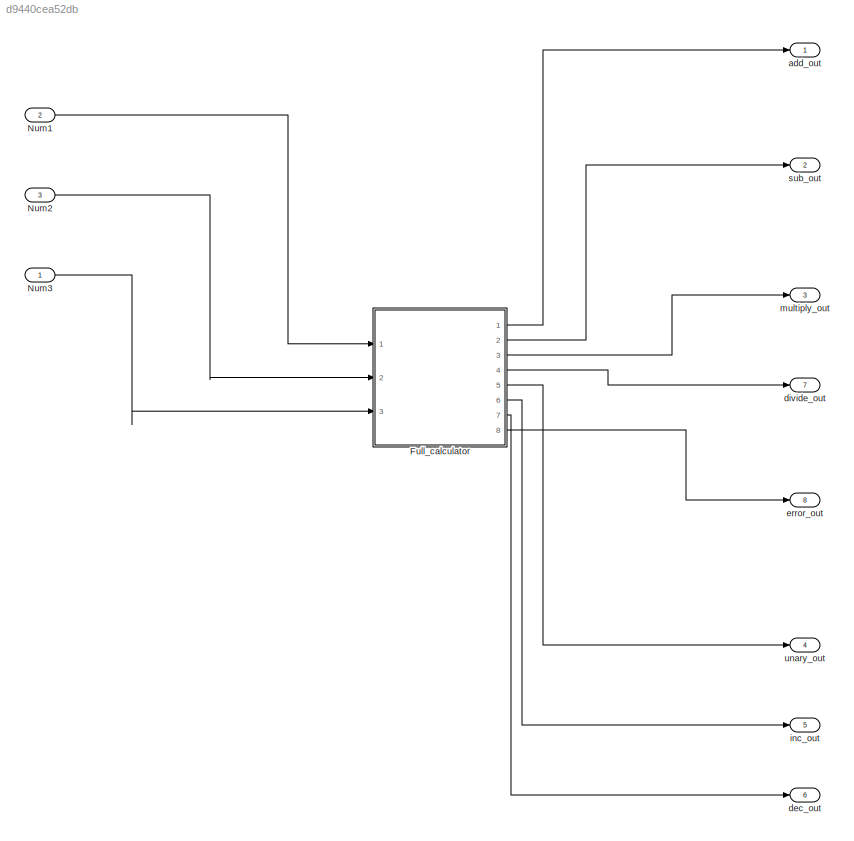
MODEL slx_d9440cea52db
KIND model
CONFIG AbsTol = auto
CONFIG EnableMultiTasking = off
CONFIG FixedStep = auto
CONFIG MaxStep = auto
CONFIG MinStep = auto
CONFIG RelTol = 1e-3
CONFIG SampleTimeConstraint = Unconstrained
CONFIG SolverName = VariableStepAuto
CONFIG StartTime = 0.0
CONFIG StopTime = 10.0
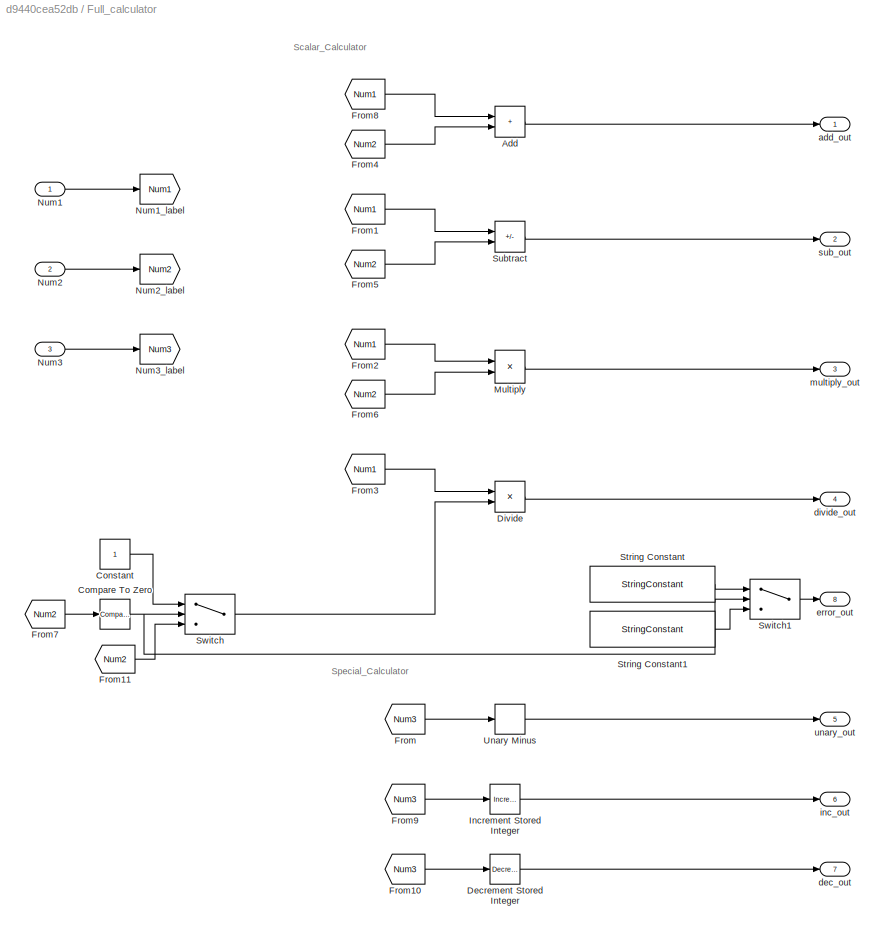
BLOCK [SubSystem] Full_calculator
  Ports = [3, 8]
  RequestExecContextInheritance = off
BLOCK [Sum] Full_calculator/Add
  IconShape = rectangular
  Ports = [2, 1]
BLOCK [Reference] Full_calculator/Compare To Zero  REF=simulink/Logic and Bit
Operations/Compare
To Zero
  Ports = [1, 1]
  SourceBlock = simulink/Logic and Bit\nOperations/Compare\nTo Zero
  SourceProductBaseCode = SL
  SourceType = Compare To Zero
BLOCK [Constant] Full_calculator/Constant
BLOCK [Reference] Full_calculator/Decrement Stored Integer  REF=simulink/Additional Math
& Discrete/Additional Math:
Increment - Decrement/Decrement
Stored Integer
  Ports = [1, 1]
  SourceBlock = simulink/Additional Math\n& Discrete/Additional Math:\nIncrement - Decrement/Decrement\nStored Integer
  SourceProductBaseCode = SL
  SourceType = Stored Integer Value Decrement
BLOCK [Product] Full_calculator/Divide
  Inputs = */
  Ports = [2, 1]
BLOCK [From] Full_calculator/From
  GotoTag = Num3
BLOCK [From] Full_calculator/From1
  GotoTag = Num1
BLOCK [From] Full_calculator/From10
  GotoTag = Num3
BLOCK [From] Full_calculator/From11
  GotoTag = Num2
BLOCK [From] Full_calculator/From2
  GotoTag = Num1
BLOCK [From] Full_calculator/From3
  GotoTag = Num1
BLOCK [From] Full_calculator/From4
  GotoTag = Num2
BLOCK [From] Full_calculator/From5
  GotoTag = Num2
BLOCK [From] Full_calculator/From6
  GotoTag = Num2
BLOCK [From] Full_calculator/From7
  GotoTag = Num2
BLOCK [From] Full_calculator/From8
  GotoTag = Num1
BLOCK [From] Full_calculator/From9
  GotoTag = Num3
BLOCK [Reference] Full_calculator/Increment Stored Integer  REF=simulink/Additional Math
& Discrete/Additional Math:
Increment - Decrement/Increment
Stored Integer
  Ports = [1, 1]
  SourceBlock = simulink/Additional Math\n& Discrete/Additional Math:\nIncrement - Decrement/Increment\nStored Integer
  SourceProductBaseCode = SL
  SourceType = Stored Integer Value Increment
BLOCK [Product] Full_calculator/Multiply
  Inputs = **
  Ports = [2, 1]
BLOCK [Inport] Full_calculator/Num1
BLOCK [Goto] Full_calculator/Num1_label
  GotoTag = Num1
BLOCK [Inport] Full_calculator/Num2
  Port = 2
BLOCK [Goto] Full_calculator/Num2_label
  GotoTag = Num2
BLOCK [Inport] Full_calculator/Num3
  Port = 3
BLOCK [Goto] Full_calculator/Num3_label
  GotoTag = Num3
BLOCK [StringConstant] Full_calculator/String Constant
  String = "Error_Division_By_Zero"
BLOCK [StringConstant] Full_calculator/String Constant1
  String = "No_Errors"
BLOCK [Sum] Full_calculator/Subtract
  IconShape = rectangular
  Inputs = +-
  Ports = [2, 1]
BLOCK [Switch] Full_calculator/Switch
  Criteria = u2 > Threshold
  InputSameDT = off
  SaturateOnIntegerOverflow = off
BLOCK [Switch] Full_calculator/Switch1
  Criteria = u2 > Threshold
  InputSameDT = off
  SaturateOnIntegerOverflow = off
BLOCK [UnaryMinus] Full_calculator/Unary Minus
BLOCK [Outport] Full_calculator/add_out
BLOCK [Outport] Full_calculator/dec_out
  Port = 7
BLOCK [Outport] Full_calculator/divide_out
  Port = 4
BLOCK [Outport] Full_calculator/error_out
  Port = 8
BLOCK [Outport] Full_calculator/inc_out
  Port = 6
BLOCK [Outport] Full_calculator/multiply_out
  Port = 3
BLOCK [Outport] Full_calculator/sub_out
  Port = 2
BLOCK [Outport] Full_calculator/unary_out
  Port = 5
BLOCK [Inport] Num1
  Port = 2
BLOCK [Inport] Num2
  Port = 3
BLOCK [Inport] Num3
BLOCK [Outport] add_out
BLOCK [Outport] dec_out
  Port = 6
BLOCK [Outport] divide_out
  Port = 7
BLOCK [Outport] error_out
  Port = 8
BLOCK [Outport] inc_out
  Port = 5
BLOCK [Outport] multiply_out
  Port = 3
BLOCK [Outport] sub_out
  Port = 2
BLOCK [Outport] unary_out
  Port = 4
ANNOTATION Full_calculator: Scalar_Calculator
ANNOTATION Full_calculator: Special_Calculator
LINE Full_calculator/Add:1 -> Full_calculator/add_out:1
NET Full_calculator/Compare To Zero:1 -> Full_calculator/Switch1:2, Full_calculator/Switch:2
LINE Full_calculator/Constant:1 -> Full_calculator/Switch:1
LINE Full_calculator/Decrement Stored Integer:1 -> Full_calculator/dec_out:1
LINE Full_calculator/Divide:1 -> Full_calculator/divide_out:1
LINE Full_calculator/From10:1 -> Full_calculator/Decrement Stored Integer:1
LINE Full_calculator/From11:1 -> Full_calculator/Switch:3
LINE Full_calculator/From1:1 -> Full_calculator/Subtract:1
LINE Full_calculator/From2:1 -> Full_calculator/Multiply:1
LINE Full_calculator/From3:1 -> Full_calculator/Divide:1
LINE Full_calculator/From4:1 -> Full_calculator/Add:2
LINE Full_calculator/From5:1 -> Full_calculator/Subtract:2
LINE Full_calculator/From6:1 -> Full_calculator/Multiply:2
LINE Full_calculator/From7:1 -> Full_calculator/Compare To Zero:1
LINE Full_calculator/From8:1 -> Full_calculator/Add:1
LINE Full_calculator/From9:1 -> Full_calculator/Increment Stored Integer:1
LINE Full_calculator/From:1 -> Full_calculator/Unary Minus:1
LINE Full_calculator/Increment Stored Integer:1 -> Full_calculator/inc_out:1
LINE Full_calculator/Multiply:1 -> Full_calculator/multiply_out:1
LINE Full_calculator/Num1:1 -> Full_calculator/Num1_label:1
LINE Full_calculator/Num2:1 -> Full_calculator/Num2_label:1
LINE Full_calculator/Num3:1 -> Full_calculator/Num3_label:1
LINE Full_calculator/String Constant1:1 -> Full_calculator/Switch1:3
LINE Full_calculator/String Constant:1 -> Full_calculator/Switch1:1
LINE Full_calculator/Subtract:1 -> Full_calculator/sub_out:1
LINE Full_calculator/Switch1:1 -> Full_calculator/error_out:1
LINE Full_calculator/Switch:1 -> Full_calculator/Divide:2
LINE Full_calculator/Unary Minus:1 -> Full_calculator/unary_out:1
LINE Full_calculator:1 -> add_out:1
LINE Full_calculator:2 -> sub_out:1
LINE Full_calculator:3 -> multiply_out:1
LINE Full_calculator:4 -> divide_out:1
LINE Full_calculator:5 -> unary_out:1
LINE Full_calculator:6 -> inc_out:1
LINE Full_calculator:7 -> dec_out:1
LINE Full_calculator:8 -> error_out:1
LINE Num1:1 -> Full_calculator:1
LINE Num2:1 -> Full_calculator:2
LINE Num3:1 -> Full_calculator:3
note: NET lines group one-source signal fan-out (src -> all destinations, sorted); 1:1 wires keep LINE
